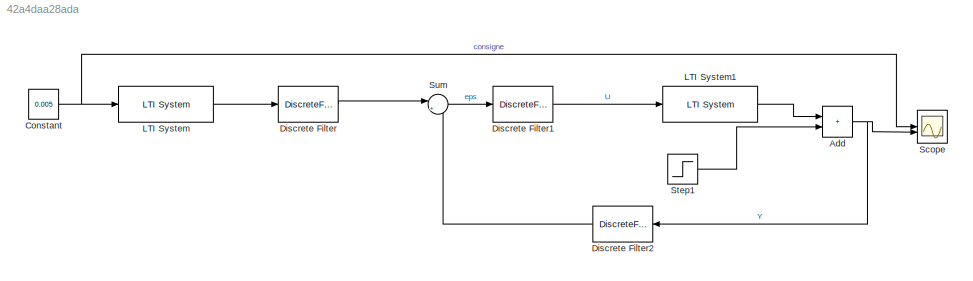
MODEL slx_42a4daa28ada
KIND model
CONFIG AbsTol = auto
CONFIG EnableMultiTasking = off
CONFIG FixedStep = auto
CONFIG MaxStep = auto
CONFIG MinStep = auto
CONFIG RelTol = 1e-3
CONFIG SampleTimeConstraint = Unconstrained
CONFIG SolverName = VariableStepAuto
CONFIG StartTime = 0.0
CONFIG StopTime = 1
BLOCK [Sum] Add
  IconShape = rectangular
BLOCK [Constant] Constant
  Value = 0.005
BLOCK [DiscreteFilter] Discrete Filter
  Denominator = 1
  InputPortMap = u0
  Numerator = T
  SampleTime = Te
BLOCK [DiscreteFilter] Discrete Filter1
  Denominator = S
  InputPortMap = u0
  Numerator = 1
  SampleTime = Te
BLOCK [DiscreteFilter] Discrete Filter2
  Denominator = 1
  InputPortMap = u0
  NameLocation = top
  Numerator = R
BLOCK [Reference] LTI System  REF=cstblocks/LTI System
  SourceBlock = cstblocks/LTI System
  SourceType = LTI Block
BLOCK [Reference] LTI System1  REF=cstblocks/LTI System
  SourceBlock = cstblocks/LTI System
  SourceType = LTI Block
BLOCK [Scope] Scope
  Floating = off
  NumInputPorts = 2
  ScopeSpecificationString = Simulink.scopes.TimeScopeBlockCfg('CurrentConfiguration', extmgr.ConfigurationSet(extmgr.Configuration('Core','General UI',true,'FigureColor',[1 1 1]),extmgr.Configuration('Core','Source UI',true),extmgr.Configuration('Sources','WiredSimulink',true),extmgr.Configuration('Visuals','Time Domain',true,'SerializedDisplays',{struct('MinYLimReal','0.00484','MaxYLimReal','0.00703','YLabelReal','','MinYLi...<+1740ch>
BLOCK [Step] Step1
  After = 0.002
  SampleTime = 0
  Time = 0.5
BLOCK [Sum] Sum
  Inputs = |+-
NET Add:1 -> Discrete Filter2:1, Scope:2
NET Constant:1 -> LTI System:1, Scope:1
LINE Discrete Filter1:1 -> LTI System1:1
LINE Discrete Filter2:1 -> Sum:2
LINE Discrete Filter:1 -> Sum:1
LINE LTI System1:1 -> Add:1
LINE LTI System:1 -> Discrete Filter:1
LINE Step1:1 -> Add:2
LINE Sum:1 -> Discrete Filter1:1
note: NET lines group one-source signal fan-out (src -> all destinations, sorted); 1:1 wires keep LINE
